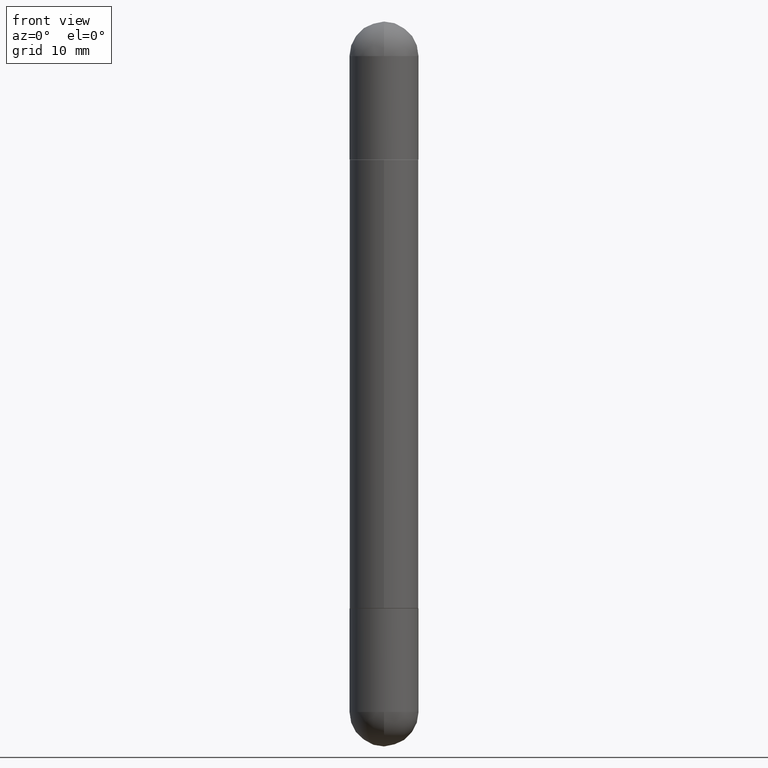
[diagram: clean part render]
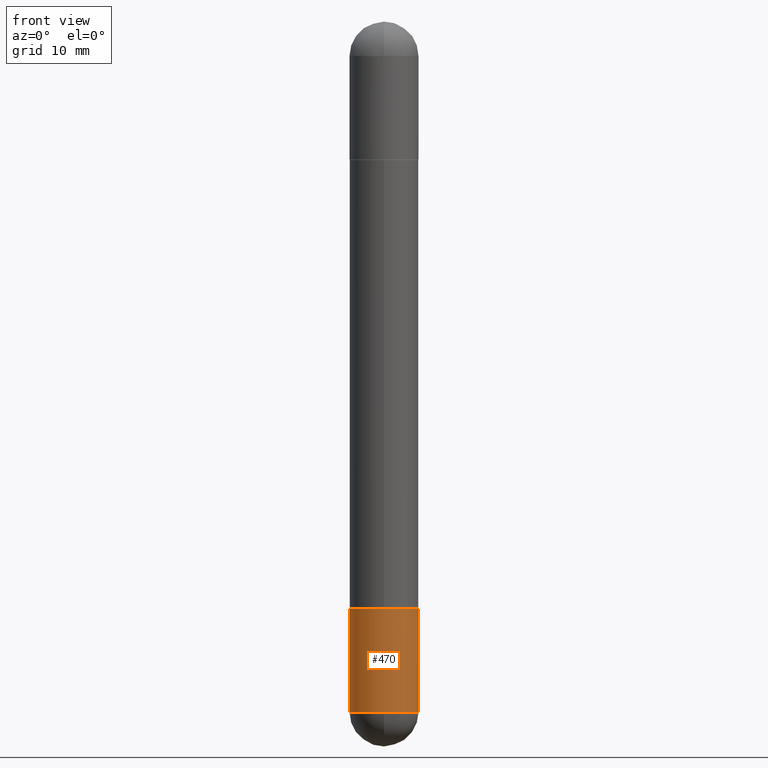
[diagram: same view with one face highlighted and labeled with its STEP entity id]
A machine part, front view. The second image highlights one B-rep face of the part: STEP entity #470.
In plain terms, the highlighted cylindrical surface (edge-blend (fillet) strip) has radius 2.9997 mm, axis along (-0, 0, 1).
Its self-contained STEP definition (entity closure, byte-faithful):
#7 = CIRCLE ( 'NONE', #779, 0.1180999999999999966 ) ;
#9 = AXIS2_PLACEMENT_3D ( 'NONE', #132, #817, #815 ) ;
#25 = VECTOR ( 'NONE', #694, 39.37007874015748143 ) ;
#32 = DIRECTION ( 'NONE',  ( -2.445468806185136597E-29, 3.491481338843145583E-15, 1.000000000000000000 ) ) ;
#46 = CARTESIAN_POINT ( 'NONE',  ( 5.776686413970530874E-29, -8.247577218615279626E-15, -2.362200000000000077 ) ) ;
#55 = DIRECTION ( 'NONE',  ( 1.000000000000000000, -6.982962677686265133E-15, 0.000000000000000000 ) ) ;
#77 = EDGE_CURVE ( 'NONE', #511, #563, #211, .T. ) ;
#106 = VERTEX_POINT ( 'NONE', #483 ) ;
#132 = CARTESIAN_POINT ( 'NONE',  ( 4.910256815939136430E-29, -7.010545380263152499E-15, -2.007900000000000240 ) ) ;
#141 = CIRCLE ( 'NONE', #607, 0.1180999999999999966 ) ;
#153 = CYLINDRICAL_SURFACE ( 'NONE', #283, 0.1180999999999999966 ) ;
#174 = ORIENTED_EDGE ( 'NONE', *, *, #77, .F. ) ;
#176 = CARTESIAN_POINT ( 'NONE',  ( -0.1180999999999999966, -6.789910328506537866E-15, -2.007900000000000240 ) ) ;
#211 = LINE ( 'NONE', #343, #702 ) ;
#224 = DIRECTION ( 'NONE',  ( -2.445468806185136597E-29, 3.491481338843145583E-15, 1.000000000000000000 ) ) ;
#283 = AXIS2_PLACEMENT_3D ( 'NONE', #409, #224, #601 ) ;
#302 = CARTESIAN_POINT ( 'NONE',  ( 0.1180999999999999966, -8.453749191673964325E-15, -2.362200000000000077 ) ) ;
#325 = EDGE_LOOP ( 'NONE', ( #174, #697, #515, #637, #781 ) ) ;
#343 = CARTESIAN_POINT ( 'NONE',  ( -0.1180999999999999966, 8.391509709326782957E-16, -5.809262341591043784E-30 ) ) ;
#349 = DIRECTION ( 'NONE',  ( -2.445468806185136877E-29, 3.491481338843145188E-15, 1.000000000000000000 ) ) ;
#353 = CARTESIAN_POINT ( 'NONE',  ( 5.776686413970530874E-29, -8.247577218615279626E-15, -2.362200000000000077 ) ) ;
#356 = FACE_OUTER_BOUND ( 'NONE', #325, .T. ) ;
#384 = CARTESIAN_POINT ( 'NONE',  ( 0.1180999999999999966, -8.246878922347480654E-16, 5.758764772215000440E-30 ) ) ;
#409 = CARTESIAN_POINT ( 'NONE',  ( 0.000000000000000000, 0.000000000000000000, 0.000000000000000000 ) ) ;
#429 = DIRECTION ( 'NONE',  ( -2.445468806185136597E-29, 3.491481338843145583E-15, 1.000000000000000000 ) ) ;
#460 = EDGE_CURVE ( 'NONE', #106, #579, #7, .T. ) ;
#470 = ADVANCED_FACE ( 'NONE', ( #356 ), #153, .T. ) ;
#480 = VERTEX_POINT ( 'NONE', #721 ) ;
#483 = CARTESIAN_POINT ( 'NONE',  ( -8.391509709326229768E-16, -0.1181000000000086009, -2.362199999999999633 ) ) ;
#511 = VERTEX_POINT ( 'NONE', #740 ) ;
#515 = ORIENTED_EDGE ( 'NONE', *, *, #460, .T. ) ;
#539 = DIRECTION ( 'NONE',  ( 1.000000000000000000, -6.982962677686265133E-15, 0.000000000000000000 ) ) ;
#555 = EDGE_CURVE ( 'NONE', #511, #106, #141, .T. ) ;
#563 = VERTEX_POINT ( 'NONE', #176 ) ;
#570 = LINE ( 'NONE', #384, #25 ) ;
#579 = VERTEX_POINT ( 'NONE', #302 ) ;
#601 = DIRECTION ( 'NONE',  ( 1.000000000000000000, -6.982962677686266711E-15, 4.876176775795936353E-29 ) ) ;
#607 = AXIS2_PLACEMENT_3D ( 'NONE', #46, #429, #55 ) ;
#637 = ORIENTED_EDGE ( 'NONE', *, *, #765, .T. ) ;
#694 = DIRECTION ( 'NONE',  ( -2.445468806185136877E-29, 3.491481338843145188E-15, 1.000000000000000000 ) ) ;
#697 = ORIENTED_EDGE ( 'NONE', *, *, #555, .T. ) ;
#702 = VECTOR ( 'NONE', #349, 39.37007874015748143 ) ;
#721 = CARTESIAN_POINT ( 'NONE',  ( 0.1180999999999999966, -7.835233272497900762E-15, -2.007900000000000240 ) ) ;
#731 = CIRCLE ( 'NONE', #9, 0.1180999999999999966 ) ;
#740 = CARTESIAN_POINT ( 'NONE',  ( -0.1180999999999999966, -6.789910328506538655E-15, -2.362200000000000077 ) ) ;
#765 = EDGE_CURVE ( 'NONE', #579, #480, #570, .T. ) ;
#779 = AXIS2_PLACEMENT_3D ( 'NONE', #353, #32, #539 ) ;
#781 = ORIENTED_EDGE ( 'NONE', *, *, #799, .F. ) ;
#799 = EDGE_CURVE ( 'NONE', #563, #480, #731, .T. ) ;
#815 = DIRECTION ( 'NONE',  ( 1.000000000000000000, -6.982962677686265133E-15, 0.000000000000000000 ) ) ;
#817 = DIRECTION ( 'NONE',  ( -2.445468806185136597E-29, 3.491481338843145583E-15, 1.000000000000000000 ) ) ;